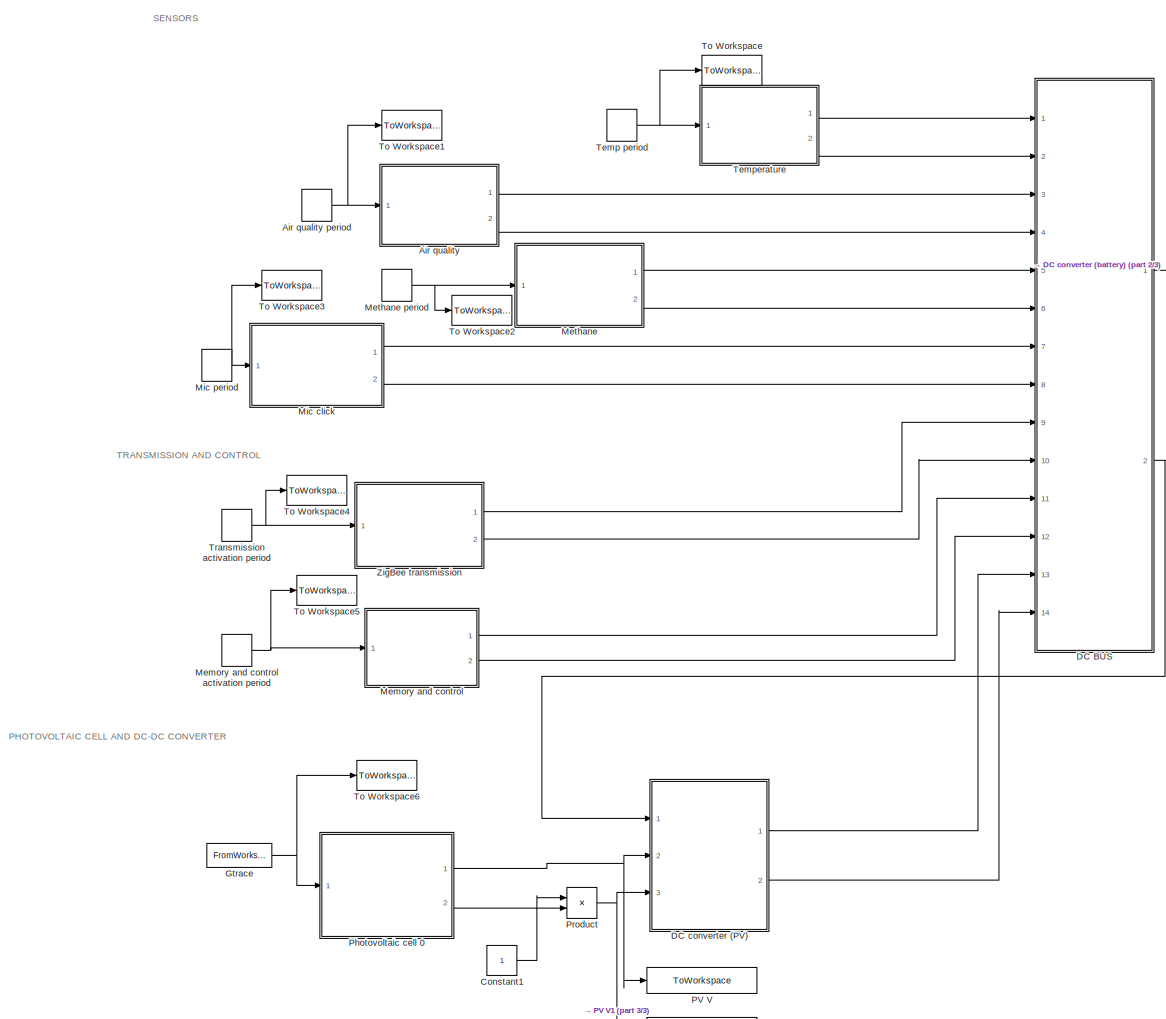
[diagram: root canvas - part 1/3, center side, full height]
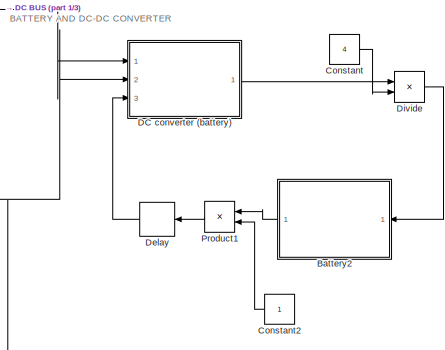
[diagram: root canvas - part 2/3, middle right region]
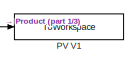
[diagram: root canvas - part 3/3, bottom center region]
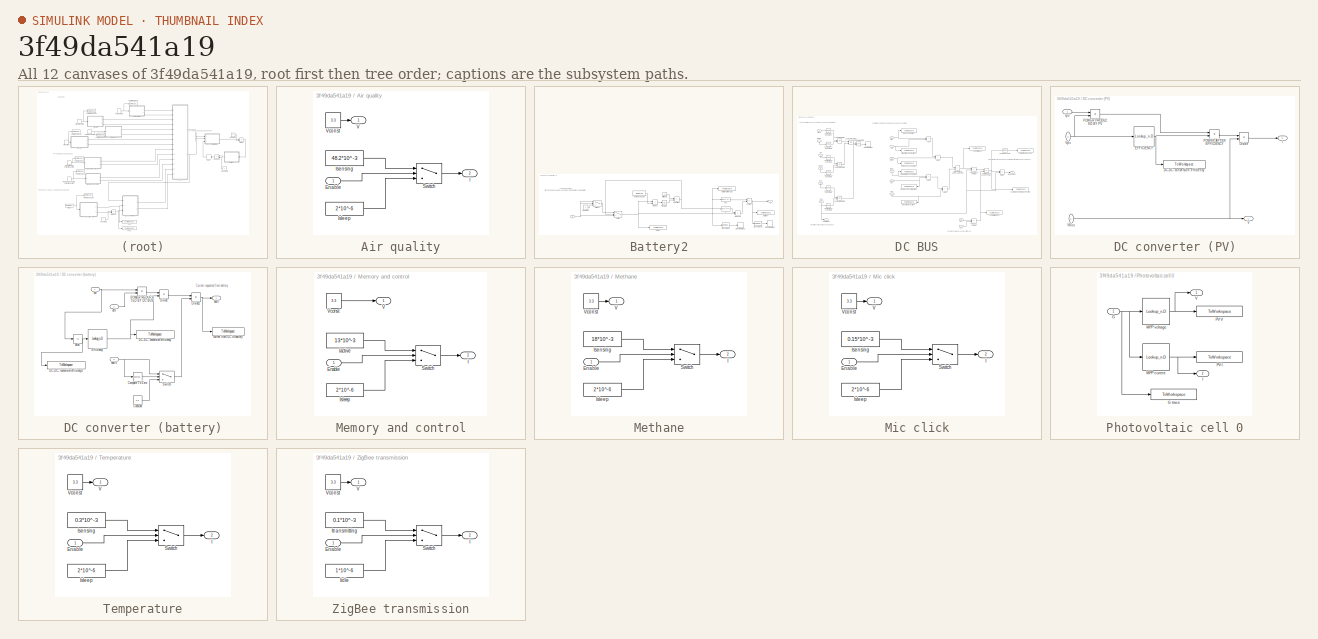
[diagram: thumbnail index - all 12 canvases of the model, root first then tree order]
MODEL slx_3f49da541a19
KIND model
CONFIG AbsTol = auto
CONFIG EnableMultiTasking = off
CONFIG FixedStep = 1
CONFIG MaxStep = auto
CONFIG MinStep = auto
CONFIG RelTol = 1e-3
CONFIG SampleTimeConstraint = Unconstrained
CONFIG SolverName = FixedStepAuto
CONFIG StartTime = 0.0
CONFIG StopTime = sim_length
BLOCK [SubSystem] Air quality
  Ports = [1, 2]
  RequestExecContextInheritance = off
BLOCK [DiscretePulseGenerator] Air quality period
  Period = period
  PhaseDelay = air_delay
  Ports = [0, 1]
  PulseType = Time based
  PulseWidth = air_pulse
BLOCK [Inport] Air quality/Enable
BLOCK [Outport] Air quality/I
  Port = 2
BLOCK [Constant] Air quality/Isensing
  Value = 48.2*10^-3
BLOCK [Constant] Air quality/Isleep
  Value = 2*10^-6
BLOCK [Switch] Air quality/Switch
  Criteria = u2 > Threshold
  InputSameDT = off
  SaturateOnIntegerOverflow = off
BLOCK [Outport] Air quality/V
BLOCK [Constant] Air quality/Vconst
  Value = 3.3
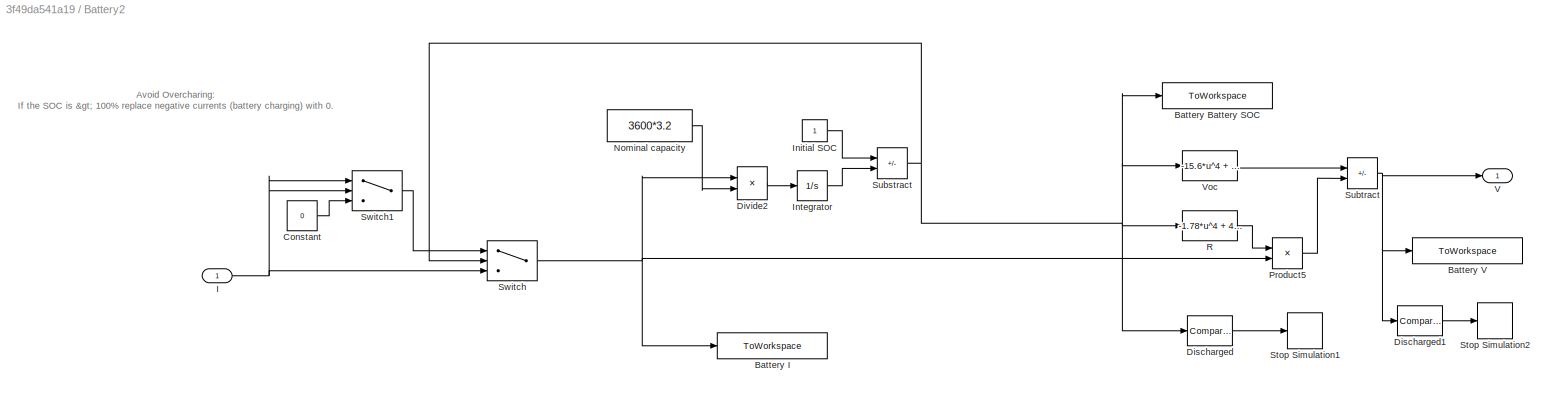
BLOCK [SubSystem] Battery2
  Ports = [1, 1]
  RequestExecContextInheritance = off
BLOCK [ToWorkspace] Battery2/Battery Battery SOC
  FixptAsFi = on
  MaxDataPoints = inf
  Ports = [1]
  SampleTime = -1
  VariableName = battSOC
BLOCK [ToWorkspace] Battery2/Battery I
  FixptAsFi = on
  MaxDataPoints = inf
  Ports = [1]
  SampleTime = -1
  VariableName = battCurrent
BLOCK [ToWorkspace] Battery2/Battery V
  FixptAsFi = on
  MaxDataPoints = inf
  Ports = [1]
  SampleTime = -1
  VariableName = battVoltage
BLOCK [Constant] Battery2/Constant
  Value = 0
BLOCK [Reference] Battery2/Discharged  REF=simulink/Logic and Bit
Operations/Compare
To Constant
  Ports = [1, 1]
  SourceBlock = simulink/Logic and Bit\nOperations/Compare\nTo Constant
  SourceProductBaseCode = SL
  SourceType = Compare To Constant
BLOCK [Reference] Battery2/Discharged1  REF=simulink/Logic and Bit
Operations/Compare
To Constant
  Ports = [1, 1]
  SourceBlock = simulink/Logic and Bit\nOperations/Compare\nTo Constant
  SourceProductBaseCode = SL
  SourceType = Compare To Constant
BLOCK [Product] Battery2/Divide2
  Inputs = */
  Ports = [2, 1]
BLOCK [Inport] Battery2/I
BLOCK [Constant] Battery2/Initial SOC
BLOCK [Integrator] Battery2/Integrator
  Ports = [1, 1]
BLOCK [Constant] Battery2/Nominal capacity
  Value = 3600*3.2
BLOCK [Product] Battery2/Product5
  Ports = [2, 1]
  RndMeth = Zero
BLOCK [Fcn] Battery2/R
  Expr = -1.78*u^4 + 4.222*u^3 + -3.401*u^2 + 1.025*u + 0.06208
BLOCK [Stop] Battery2/Stop Simulation1
BLOCK [Stop] Battery2/Stop Simulation2
BLOCK [Sum] Battery2/Substract
  IconShape = rectangular
  Inputs = +-
  Ports = [2, 1]
BLOCK [Sum] Battery2/Subtract
  IconShape = rectangular
  Inputs = +-
  Ports = [2, 1]
BLOCK [Switch] Battery2/Switch
  InputSameDT = off
  SaturateOnIntegerOverflow = off
  Threshold = 1
BLOCK [Switch] Battery2/Switch1
  InputSameDT = off
  SaturateOnIntegerOverflow = off
BLOCK [Outport] Battery2/V
BLOCK [Fcn] Battery2/Voc
  Expr = -15.6*u^4 + 36.33*u^3 + -29.04*u^2 + 11.22*u + 0.5787
BLOCK [Constant] Constant
  Value = 4
BLOCK [Constant] Constant1
BLOCK [Constant] Constant2
  NameLocation = top
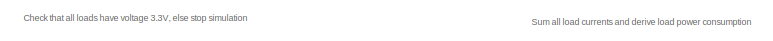
[diagram: DC BUS - part 1/3, top left region]
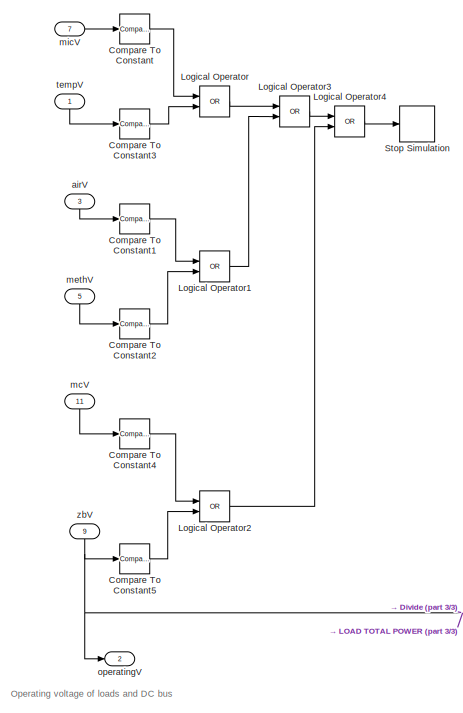
[diagram: DC BUS - part 2/3, left side, full height]
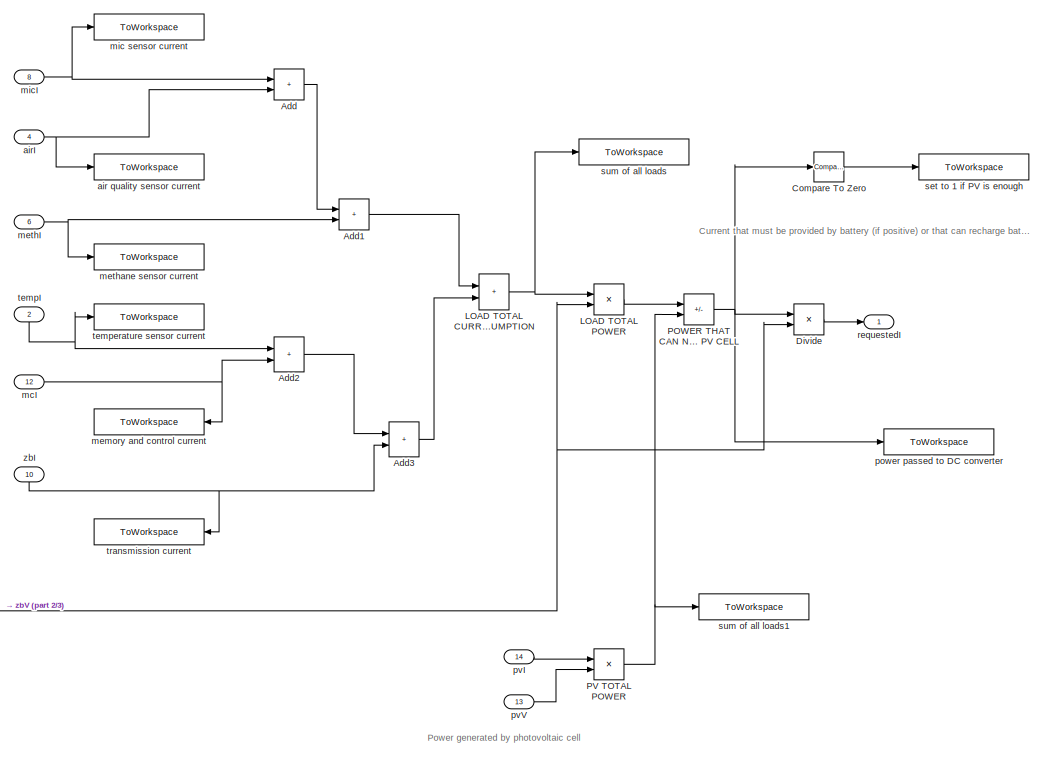
[diagram: DC BUS - part 3/3, right side, full height]
BLOCK [SubSystem] DC BUS
  Ports = [14, 2]
  RequestExecContextInheritance = off
BLOCK [Sum] DC BUS/Add
  IconShape = rectangular
  Ports = [2, 1]
BLOCK [Sum] DC BUS/Add1
  IconShape = rectangular
  Ports = [2, 1]
BLOCK [Sum] DC BUS/Add2
  IconShape = rectangular
  Ports = [2, 1]
BLOCK [Sum] DC BUS/Add3
  IconShape = rectangular
  Ports = [2, 1]
BLOCK [Reference] DC BUS/Compare To Constant  REF=simulink/Logic and Bit
Operations/Compare
To Constant
  Ports = [1, 1]
  SourceBlock = simulink/Logic and Bit\nOperations/Compare\nTo Constant
  SourceProductBaseCode = SL
  SourceType = Compare To Constant
BLOCK [Reference] DC BUS/Compare To Constant1  REF=simulink/Logic and Bit
Operations/Compare
To Constant
  Ports = [1, 1]
  SourceBlock = simulink/Logic and Bit\nOperations/Compare\nTo Constant
  SourceProductBaseCode = SL
  SourceType = Compare To Constant
BLOCK [Reference] DC BUS/Compare To Constant2  REF=simulink/Logic and Bit
Operations/Compare
To Constant
  Ports = [1, 1]
  SourceBlock = simulink/Logic and Bit\nOperations/Compare\nTo Constant
  SourceProductBaseCode = SL
  SourceType = Compare To Constant
BLOCK [Reference] DC BUS/Compare To Constant3  REF=simulink/Logic and Bit
Operations/Compare
To Constant
  Ports = [1, 1]
  SourceBlock = simulink/Logic and Bit\nOperations/Compare\nTo Constant
  SourceProductBaseCode = SL
  SourceType = Compare To Constant
BLOCK [Reference] DC BUS/Compare To Constant4  REF=simulink/Logic and Bit
Operations/Compare
To Constant
  Ports = [1, 1]
  SourceBlock = simulink/Logic and Bit\nOperations/Compare\nTo Constant
  SourceProductBaseCode = SL
  SourceType = Compare To Constant
BLOCK [Reference] DC BUS/Compare To Constant5  REF=simulink/Logic and Bit
Operations/Compare
To Constant
  Ports = [1, 1]
  SourceBlock = simulink/Logic and Bit\nOperations/Compare\nTo Constant
  SourceProductBaseCode = SL
  SourceType = Compare To Constant
BLOCK [Reference] DC BUS/Compare To Zero  REF=simulink/Logic and Bit
Operations/Compare
To Zero
  Ports = [1, 1]
  SourceBlock = simulink/Logic and Bit\nOperations/Compare\nTo Zero
  SourceProductBaseCode = SL
  SourceType = Compare To Zero
BLOCK [Product] DC BUS/Divide
  Inputs = */
  Ports = [2, 1]
BLOCK [Sum] DC BUS/LOAD TOTAL CURRENT CONSUMPTION
  IconShape = rectangular
  Ports = [2, 1]
BLOCK [Product] DC BUS/LOAD TOTAL POWER
  Ports = [2, 1]
BLOCK [Logic] DC BUS/Logical Operator
  AllPortsSameDT = off
  Operator = OR
  OutDataTypeStr = boolean
  Ports = [2, 1]
BLOCK [Logic] DC BUS/Logical Operator1
  AllPortsSameDT = off
  Operator = OR
  OutDataTypeStr = boolean
  Ports = [2, 1]
BLOCK [Logic] DC BUS/Logical Operator2
  AllPortsSameDT = off
  Operator = OR
  OutDataTypeStr = boolean
  Ports = [2, 1]
BLOCK [Logic] DC BUS/Logical Operator3
  AllPortsSameDT = off
  Operator = OR
  OutDataTypeStr = boolean
  Ports = [2, 1]
BLOCK [Logic] DC BUS/Logical Operator4
  AllPortsSameDT = off
  Operator = OR
  OutDataTypeStr = boolean
  Ports = [2, 1]
BLOCK [Sum] DC BUS/POWER THAT CAN NOT BE PROVIDED BY PV CELL
  IconShape = rectangular
  Inputs = +-
  Ports = [2, 1]
BLOCK [Product] DC BUS/PV TOTAL POWER
  Ports = [2, 1]
BLOCK [Stop] DC BUS/Stop Simulation
BLOCK [ToWorkspace] DC BUS/air quality sensor current
  FixptAsFi = on
  MaxDataPoints = inf
  Ports = [1]
  SampleTime = -1
  VariableName = airI
BLOCK [Inport] DC BUS/airI
  Port = 4
BLOCK [Inport] DC BUS/airV
  NameLocation = right
  Port = 3
BLOCK [Inport] DC BUS/mcI
  Port = 12
BLOCK [Inport] DC BUS/mcV
  NameLocation = right
  Port = 11
BLOCK [ToWorkspace] DC BUS/memory and control current
  FixptAsFi = on
  MaxDataPoints = inf
  Ports = [1]
  SampleTime = -1
  VariableName = mcI
BLOCK [Inport] DC BUS/methI
  Port = 6
BLOCK [Inport] DC BUS/methV
  NameLocation = right
  Port = 5
BLOCK [ToWorkspace] DC BUS/methane sensor current
  FixptAsFi = on
  MaxDataPoints = inf
  Ports = [1]
  SampleTime = -1
  VariableName = methI
BLOCK [ToWorkspace] DC BUS/mic sensor current
  FixptAsFi = on
  MaxDataPoints = inf
  Ports = [1]
  SampleTime = -1
  VariableName = micI
BLOCK [Inport] DC BUS/micI
  Port = 8
BLOCK [Inport] DC BUS/micV
  Port = 7
BLOCK [Outport] DC BUS/operatingV
  Port = 2
BLOCK [ToWorkspace] DC BUS/power passed to DC converter
  FixptAsFi = on
  MaxDataPoints = inf
  Ports = [1]
  SampleTime = -1
  VariableName = powerToDC
BLOCK [Inport] DC BUS/pvI
  Port = 14
BLOCK [Inport] DC BUS/pvV
  Port = 13
BLOCK [Outport] DC BUS/requestedI
BLOCK [ToWorkspace] DC BUS/set to 1 if PV is enough
  FixptAsFi = on
  MaxDataPoints = inf
  Ports = [1]
  SampleTime = -1
  VariableName = activePV
BLOCK [ToWorkspace] DC BUS/sum of all loads
  FixptAsFi = on
  MaxDataPoints = inf
  Ports = [1]
  SampleTime = -1
  VariableName = loadCurrent
BLOCK [ToWorkspace] DC BUS/sum of all loads1
  FixptAsFi = on
  MaxDataPoints = inf
  Ports = [1]
  SampleTime = -1
  VariableName = PVPower
BLOCK [Inport] DC BUS/tempI
  NameLocation = right
  Port = 2
BLOCK [Inport] DC BUS/tempV
  NameLocation = right
BLOCK [ToWorkspace] DC BUS/temperature sensor current
  FixptAsFi = on
  MaxDataPoints = inf
  Ports = [1]
  SampleTime = -1
  VariableName = tempI
BLOCK [ToWorkspace] DC BUS/transmission current
  FixptAsFi = on
  MaxDataPoints = inf
  Ports = [1]
  SampleTime = -1
  VariableName = zbI
BLOCK [Inport] DC BUS/zbI
  NameLocation = right
  Port = 10
BLOCK [Inport] DC BUS/zbV
  NameLocation = right
  Port = 9
BLOCK [SubSystem] DC converter (PV)
  Ports = [3, 2]
  RequestExecContextInheritance = off
BLOCK [ToWorkspace] DC converter (PV)/DC-DC- conversion efficiency
  FixptAsFi = on
  MaxDataPoints = inf
  Ports = [1]
  SampleTime = -1
  VariableName = efficiencyPV
BLOCK [Product] DC converter (PV)/Divide
  Inputs = */
  Ports = [2, 1]
BLOCK [Lookup_n-D] DC converter (PV)/EFFICIENCY
  BreakpointsForDimension1 = PV_DCDC(:, 1)
  InputPortMap = u0
  InternalRulePriority = Speed
  NumberOfTableDimensions = 1
  Ports = [1, 1]
  RndMeth = Simplest
  Table = PV_DCDC(:, 2)
BLOCK [Outport] DC converter (PV)/I
  Port = 2
BLOCK [Inport] DC converter (PV)/Ipv
  Port = 3
BLOCK [Product] DC converter (PV)/POWER AFTER EFFICIENCY 
  Ports = [2, 1]
BLOCK [Product] DC converter (PV)/POWER PRODUCED BY PV
  Ports = [2, 1]
BLOCK [Outport] DC converter (PV)/V
BLOCK [Inport] DC converter (PV)/Vbus
  NameLocation = top
BLOCK [Inport] DC converter (PV)/Vpv
  NameLocation = top
  Port = 2
BLOCK [SubSystem] DC converter (battery)
  Ports = [3, 1]
  RequestExecContextInheritance = off
BLOCK [Abs] DC converter (battery)/Abs
  SaturateOnIntegerOverflow = off
BLOCK [Reference] DC converter (battery)/Compare To Zero  REF=simulink/Logic and Bit
Operations/Compare
To Zero
  Ports = [1, 1]
  SourceBlock = simulink/Logic and Bit\nOperations/Compare\nTo Zero
  SourceProductBaseCode = SL
  SourceType = Compare To Zero
BLOCK [Constant] DC converter (battery)/Constant
  Value = 3.6
BLOCK [ToWorkspace] DC converter (battery)/DC-DC- conversion efficiency
  FixptAsFi = on
  MaxDataPoints = inf
  Ports = [1]
  SampleTime = -1
  VariableName = efficiencyBattery
BLOCK [ToWorkspace] DC converter (battery)/DC-DC- conversion efficiency1
  FixptAsFi = on
  MaxDataPoints = inf
  Ports = [1]
  SampleTime = -1
  VariableName = IRequest
BLOCK [Product] DC converter (battery)/Divide
  Inputs = */
  Ports = [2, 1]
BLOCK [Product] DC converter (battery)/Divide1
  Inputs = */
  Ports = [2, 1]
BLOCK [Lookup_n-D] DC converter (battery)/Efficiency
  BreakpointsForDimension1 = BAT_DCDC(:, 1)
  InputPortMap = u0
  InternalRulePriority = Speed
  NumberOfTableDimensions = 1
  Ports = [1, 1]
  RndMeth = Simplest
  Table = BAT_DCDC(:, 2)
BLOCK [Product] DC converter (battery)/POWER REQUESTED BY DC BUS
  Ports = [2, 1]
BLOCK [Switch] DC converter (battery)/Switch
  Criteria = u2 ~= 0
  InputSameDT = off
  SaturateOnIntegerOverflow = off
BLOCK [Outport] DC converter (battery)/battI
BLOCK [Inport] DC converter (battery)/battV
  Port = 3
BLOCK [ToWorkspace] DC converter (battery)/current from DC to battery
  FixptAsFi = on
  MaxDataPoints = inf
  Ports = [1]
  SampleTime = -1
  VariableName = dcToBatt
BLOCK [Inport] DC converter (battery)/dcI
BLOCK [Inport] DC converter (battery)/dcV
  Port = 2
BLOCK [Delay] Delay
  DelayLength = 1
  InitialCondition = 0
  InputPortMap = u0
  Ports = [1, 1]
BLOCK [Product] Divide
  Inputs = */
  Ports = [2, 1]
BLOCK [FromWorkspace] Gtrace
  OutputAfterFinalValue = Setting to zero
  VariableName = Gmonth
BLOCK [SubSystem] Memory and control
  Ports = [1, 2]
  RequestExecContextInheritance = off
BLOCK [DiscretePulseGenerator] Memory and control activation period
  Period = period
  PhaseDelay = mc_delay
  Ports = [0, 1]
  PulseType = Time based
  PulseWidth = mc_pulse
BLOCK [Inport] Memory and control/Enable
BLOCK [Outport] Memory and control/I
  Port = 2
BLOCK [Constant] Memory and control/Iactive
  Value = 13*10^-3
BLOCK [Constant] Memory and control/Isleep
  Value = 2*10^-6
BLOCK [Switch] Memory and control/Switch
  Criteria = u2 > Threshold
  InputSameDT = off
  SaturateOnIntegerOverflow = off
BLOCK [Outport] Memory and control/V
BLOCK [Constant] Memory and control/Vconst
  Value = 3.3
BLOCK [SubSystem] Methane
  Ports = [1, 2]
  RequestExecContextInheritance = off
BLOCK [DiscretePulseGenerator] Methane period
  Period = period
  PhaseDelay = methane_delay
  Ports = [0, 1]
  PulseType = Time based
  PulseWidth = methane_pulse
BLOCK [Inport] Methane/Enable
BLOCK [Outport] Methane/I
  Port = 2
BLOCK [Constant] Methane/Isensing
  Value = 18*10^-3
BLOCK [Constant] Methane/Isleep
  Value = 2*10^-6
BLOCK [Switch] Methane/Switch
  Criteria = u2 > Threshold
  InputSameDT = off
  SaturateOnIntegerOverflow = off
BLOCK [Outport] Methane/V
BLOCK [Constant] Methane/Vconst
  Value = 3.3
BLOCK [SubSystem] Mic click
  Ports = [1, 2]
  RequestExecContextInheritance = off
BLOCK [Inport] Mic click/Enable
BLOCK [Outport] Mic click/I
  Port = 2
BLOCK [Constant] Mic click/Isensing
  Value = 0.15*10^-3
BLOCK [Constant] Mic click/Isleep
  Value = 2*10^-6
BLOCK [Switch] Mic click/Switch
  Criteria = u2 > Threshold
  InputSameDT = off
  SaturateOnIntegerOverflow = off
BLOCK [Outport] Mic click/V
BLOCK [Constant] Mic click/Vconst
  Value = 3.3
BLOCK [DiscretePulseGenerator] Mic period
  Period = period
  PhaseDelay = mic_delay
  Ports = [0, 1]
  PulseType = Time based
  PulseWidth = mic_pulse
BLOCK [ToWorkspace] PV V
  FixptAsFi = on
  MaxDataPoints = inf
  Ports = [1]
  SampleTime = -1
  VariableName = PVvoltage
BLOCK [ToWorkspace] PV V1
  FixptAsFi = on
  MaxDataPoints = inf
  Ports = [1]
  SampleTime = -1
  VariableName = PVcurrent
BLOCK [SubSystem] Photovoltaic cell 0
  Ports = [1, 2]
  RequestExecContextInheritance = off
BLOCK [Inport] Photovoltaic cell 0/G
BLOCK [ToWorkspace] Photovoltaic cell 0/G trace
  FixptAsFi = on
  MaxDataPoints = inf
  Ports = [1]
  SampleTime = -1
  VariableName = Gcurve0
BLOCK [Outport] Photovoltaic cell 0/I
  Port = 2
BLOCK [Lookup_n-D] Photovoltaic cell 0/MPP current
  BreakpointsForDimension1 = G
  InputPortMap = u0
  InternalRulePriority = Speed
  NumberOfTableDimensions = 1
  Ports = [1, 1]
  RndMeth = Simplest
  Table = I
BLOCK [Lookup_n-D] Photovoltaic cell 0/MPP voltage
  BreakpointsForDimension1 = G
  InputPortMap = u0
  InternalRulePriority = Speed
  NumberOfTableDimensions = 1
  Ports = [1, 1]
  RndMeth = Simplest
  Table = V
BLOCK [ToWorkspace] Photovoltaic cell 0/PV I
  FixptAsFi = on
  MaxDataPoints = inf
  Ports = [1]
  SampleTime = -1
  VariableName = PVcurrent0
BLOCK [ToWorkspace] Photovoltaic cell 0/PV V
  FixptAsFi = on
  MaxDataPoints = inf
  Ports = [1]
  SampleTime = -1
  VariableName = PVvoltage0
BLOCK [Outport] Photovoltaic cell 0/V
BLOCK [Product] Product
  Ports = [2, 1]
BLOCK [Product] Product1
  NameLocation = top
  Ports = [2, 1]
BLOCK [DiscretePulseGenerator] Temp period
  Period = period
  PhaseDelay = temp_delay
  Ports = [0, 1]
  PulseType = Time based
  PulseWidth = temp_pulse
BLOCK [SubSystem] Temperature
  Ports = [1, 2]
  RequestExecContextInheritance = off
BLOCK [Inport] Temperature/Enable
BLOCK [Outport] Temperature/I
  Port = 2
BLOCK [Constant] Temperature/Isensing
  Value = 0.3*10^-3
BLOCK [Constant] Temperature/Isleep
  Value = 2*10^-6
BLOCK [Switch] Temperature/Switch
  Criteria = u2 > Threshold
  InputSameDT = off
  SaturateOnIntegerOverflow = off
BLOCK [Outport] Temperature/V
BLOCK [Constant] Temperature/Vconst
  Value = 3.3
BLOCK [ToWorkspace] To Workspace
  FixptAsFi = on
  MaxDataPoints = inf
  Ports = [1]
  SampleTime = -1
  VariableName = TEMP_PERIOD
BLOCK [ToWorkspace] To Workspace1
  FixptAsFi = on
  MaxDataPoints = inf
  Ports = [1]
  SampleTime = -1
  VariableName = AIR_PERIOD
BLOCK [ToWorkspace] To Workspace2
  FixptAsFi = on
  MaxDataPoints = inf
  Ports = [1]
  SampleTime = -1
  VariableName = METHANE_PERIOD
BLOCK [ToWorkspace] To Workspace3
  FixptAsFi = on
  MaxDataPoints = inf
  Ports = [1]
  SampleTime = -1
  VariableName = MIC_PERIOD
BLOCK [ToWorkspace] To Workspace4
  FixptAsFi = on
  MaxDataPoints = inf
  Ports = [1]
  SampleTime = -1
  VariableName = TRANSMIT_PERIOD
BLOCK [ToWorkspace] To Workspace5
  FixptAsFi = on
  MaxDataPoints = inf
  Ports = [1]
  SampleTime = -1
  VariableName = MAC_PERIOD
BLOCK [ToWorkspace] To Workspace6
  FixptAsFi = on
  MaxDataPoints = inf
  Ports = [1]
  SampleTime = -1
  VariableName = LIGHT_WL
BLOCK [DiscretePulseGenerator] Transmission activation period
  Period = period
  PhaseDelay = transmit_delay
  Ports = [0, 1]
  PulseType = Time based
  PulseWidth = transmit_pulse
BLOCK [SubSystem] ZigBee transmission
  Ports = [1, 2]
  RequestExecContextInheritance = off
  UserDataPersistent = on
BLOCK [Inport] ZigBee transmission/Enable
BLOCK [Outport] ZigBee transmission/I
  Port = 2
BLOCK [Constant] ZigBee transmission/Iidle
  Value = 1*10^-6
BLOCK [Constant] ZigBee transmission/Itransmitting
  Value = 0.1*10^-3
BLOCK [Switch] ZigBee transmission/Switch
  Criteria = u2 > Threshold
  InputSameDT = off
  SaturateOnIntegerOverflow = off
BLOCK [Outport] ZigBee transmission/V
BLOCK [Constant] ZigBee transmission/Vconst
  Value = 3.3
ANNOTATION (root): BATTERY AND DC-DC CONVERTER
ANNOTATION (root): PHOTOVOLTAIC CELL AND DC-DC CONVERTER
ANNOTATION (root): SENSORS
ANNOTATION (root): TRANSMISSION AND CONTROL
ANNOTATION Battery2: Avoid Overcharing: If the SOC is > 100% replace negative currents (battery charging) with 0.
ANNOTATION DC BUS: Check that all loads have voltage 3.3V, else stop simulation
ANNOTATION DC BUS: Current that must be provided by battery (if positive) or that can recharge battery (if negative)
ANNOTATION DC BUS: Operating voltage of loads and DC bus
ANNOTATION DC BUS: Power generated by photovoltaic cell
ANNOTATION DC BUS: Sum all load currents and derive load power consumption
ANNOTATION DC converter (battery): Current requested from battery
NET Air quality period:1 -> Air quality:1, To Workspace1:1
LINE Air quality/Enable:1 -> Air quality/Switch:2
LINE Air quality/Isensing:1 -> Air quality/Switch:1
LINE Air quality/Isleep:1 -> Air quality/Switch:3
LINE Air quality/Switch:1 -> Air quality/I:1
LINE Air quality/Vconst:1 -> Air quality/V:1
LINE Air quality:1 -> DC BUS:3
LINE Air quality:2 -> DC BUS:4
LINE Battery2/Constant:1 -> Battery2/Switch1:3
LINE Battery2/Discharged1:1 -> Battery2/Stop Simulation2:1
LINE Battery2/Discharged:1 -> Battery2/Stop Simulation1:1
LINE Battery2/Divide2:1 -> Battery2/Integrator:1
NET Battery2/I:1 -> Battery2/Switch1:1, Battery2/Switch1:2, Battery2/Switch:3
LINE Battery2/Initial SOC:1 -> Battery2/Substract:1
LINE Battery2/Integrator:1 -> Battery2/Substract:2
LINE Battery2/Nominal capacity:1 -> Battery2/Divide2:2
LINE Battery2/Product5:1 -> Battery2/Subtract:2
LINE Battery2/R:1 -> Battery2/Product5:1
NET Battery2/Substract:1 -> Battery2/Battery Battery SOC:1, Battery2/Discharged:1, Battery2/R:1, Battery2/Switch:2, Battery2/Voc:1
NET Battery2/Subtract:1 -> Battery2/Battery V:1, Battery2/Discharged1:1, Battery2/V:1
LINE Battery2/Switch1:1 -> Battery2/Switch:1
NET Battery2/Switch:1 -> Battery2/Battery I:1, Battery2/Divide2:1, Battery2/Product5:2
LINE Battery2/Voc:1 -> Battery2/Subtract:1
LINE Battery2:1 -> Product1:1
LINE Constant1:1 -> Product:1
LINE Constant2:1 -> Product1:2
LINE Constant:1 -> Divide:2
LINE DC BUS/Add1:1 -> DC BUS/LOAD TOTAL CURRENT CONSUMPTION:1
LINE DC BUS/Add2:1 -> DC BUS/Add3:1
LINE DC BUS/Add3:1 -> DC BUS/LOAD TOTAL CURRENT CONSUMPTION:2
LINE DC BUS/Add:1 -> DC BUS/Add1:1
LINE DC BUS/Compare To Constant1:1 -> DC BUS/Logical Operator1:1
LINE DC BUS/Compare To Constant2:1 -> DC BUS/Logical Operator1:2
LINE DC BUS/Compare To Constant3:1 -> DC BUS/Logical Operator:2
LINE DC BUS/Compare To Constant4:1 -> DC BUS/Logical Operator2:1
LINE DC BUS/Compare To Constant5:1 -> DC BUS/Logical Operator2:2
LINE DC BUS/Compare To Constant:1 -> DC BUS/Logical Operator:1
LINE DC BUS/Compare To Zero:1 -> DC BUS/set to 1 if PV is enough:1
LINE DC BUS/Divide:1 -> DC BUS/requestedI:1
NET DC BUS/LOAD TOTAL CURRENT CONSUMPTION:1 -> DC BUS/LOAD TOTAL POWER:1, DC BUS/sum of all loads:1
LINE DC BUS/LOAD TOTAL POWER:1 -> DC BUS/POWER THAT CAN NOT BE PROVIDED BY PV CELL:1
LINE DC BUS/Logical Operator1:1 -> DC BUS/Logical Operator3:2
LINE DC BUS/Logical Operator2:1 -> DC BUS/Logical Operator4:2
LINE DC BUS/Logical Operator3:1 -> DC BUS/Logical Operator4:1
LINE DC BUS/Logical Operator4:1 -> DC BUS/Stop Simulation:1
LINE DC BUS/Logical Operator:1 -> DC BUS/Logical Operator3:1
NET DC BUS/POWER THAT CAN NOT BE PROVIDED BY PV CELL:1 -> DC BUS/Compare To Zero:1, DC BUS/Divide:1, DC BUS/power passed to DC converter:1
NET DC BUS/PV TOTAL POWER:1 -> DC BUS/POWER THAT CAN NOT BE PROVIDED BY PV CELL:2, DC BUS/sum of all loads1:1
NET DC BUS/airI:1 -> DC BUS/Add:2, DC BUS/air quality sensor current:1
LINE DC BUS/airV:1 -> DC BUS/Compare To Constant1:1
NET DC BUS/mcI:1 -> DC BUS/Add2:2, DC BUS/memory and control current:1
LINE DC BUS/mcV:1 -> DC BUS/Compare To Constant4:1
NET DC BUS/methI:1 -> DC BUS/Add1:2, DC BUS/methane sensor current:1
LINE DC BUS/methV:1 -> DC BUS/Compare To Constant2:1
NET DC BUS/micI:1 -> DC BUS/Add:1, DC BUS/mic sensor current:1
LINE DC BUS/micV:1 -> DC BUS/Compare To Constant:1
LINE DC BUS/pvI:1 -> DC BUS/PV TOTAL POWER:1
LINE DC BUS/pvV:1 -> DC BUS/PV TOTAL POWER:2
NET DC BUS/tempI:1 -> DC BUS/Add2:1, DC BUS/temperature sensor current:1
LINE DC BUS/tempV:1 -> DC BUS/Compare To Constant3:1
NET DC BUS/zbI:1 -> DC BUS/Add3:2, DC BUS/transmission current:1
NET DC BUS/zbV:1 -> DC BUS/Compare To Constant5:1, DC BUS/Divide:2, DC BUS/LOAD TOTAL POWER:2, DC BUS/operatingV:1
LINE DC BUS:1 -> DC converter (battery):1
NET DC BUS:2 -> DC converter (PV):1, DC converter (battery):2
LINE DC converter (PV)/Divide:1 -> DC converter (PV)/I:1
NET DC converter (PV)/EFFICIENCY:1 -> DC converter (PV)/DC-DC- conversion efficiency:1, DC converter (PV)/POWER AFTER EFFICIENCY :2
LINE DC converter (PV)/Ipv:1 -> DC converter (PV)/POWER PRODUCED BY PV:1
LINE DC converter (PV)/POWER AFTER EFFICIENCY :1 -> DC converter (PV)/Divide:1
LINE DC converter (PV)/POWER PRODUCED BY PV:1 -> DC converter (PV)/POWER AFTER EFFICIENCY :1
NET DC converter (PV)/Vbus:1 -> DC converter (PV)/Divide:2, DC converter (PV)/V:1
NET DC converter (PV)/Vpv:1 -> DC converter (PV)/EFFICIENCY:1, DC converter (PV)/POWER PRODUCED BY PV:2
LINE DC converter (PV):1 -> DC BUS:13
LINE DC converter (PV):2 -> DC BUS:14
NET DC converter (battery)/Abs:1 -> DC converter (battery)/DC-DC- conversion efficiency1:1, DC converter (battery)/Efficiency:1
LINE DC converter (battery)/Compare To Zero:1 -> DC converter (battery)/Switch:2
LINE DC converter (battery)/Constant:1 -> DC converter (battery)/Switch:3
NET DC converter (battery)/Divide1:1 -> DC converter (battery)/battI:1, DC converter (battery)/current from DC to battery:1
LINE DC converter (battery)/Divide:1 -> DC converter (battery)/Divide1:1
NET DC converter (battery)/Efficiency:1 -> DC converter (battery)/DC-DC- conversion efficiency:1, DC converter (battery)/Divide:2
LINE DC converter (battery)/POWER REQUESTED BY DC BUS:1 -> DC converter (battery)/Divide:1
LINE DC converter (battery)/Switch:1 -> DC converter (battery)/Divide1:2
NET DC converter (battery)/battV:1 -> DC converter (battery)/Compare To Zero:1, DC converter (battery)/Switch:1
NET DC converter (battery)/dcI:1 -> DC converter (battery)/Abs:1, DC converter (battery)/POWER REQUESTED BY DC BUS:1
LINE DC converter (battery)/dcV:1 -> DC converter (battery)/POWER REQUESTED BY DC BUS:2
LINE DC converter (battery):1 -> Divide:1
LINE Delay:1 -> DC converter (battery):3
LINE Divide:1 -> Battery2:1
NET Gtrace:1 -> Photovoltaic cell 0:1, To Workspace6:1
NET Memory and control activation period:1 -> Memory and control:1, To Workspace5:1
LINE Memory and control/Enable:1 -> Memory and control/Switch:2
LINE Memory and control/Iactive:1 -> Memory and control/Switch:1
LINE Memory and control/Isleep:1 -> Memory and control/Switch:3
LINE Memory and control/Switch:1 -> Memory and control/I:1
LINE Memory and control/Vconst:1 -> Memory and control/V:1
LINE Memory and control:1 -> DC BUS:11
LINE Memory and control:2 -> DC BUS:12
NET Methane period:1 -> Methane:1, To Workspace2:1
LINE Methane/Enable:1 -> Methane/Switch:2
LINE Methane/Isensing:1 -> Methane/Switch:1
LINE Methane/Isleep:1 -> Methane/Switch:3
LINE Methane/Switch:1 -> Methane/I:1
LINE Methane/Vconst:1 -> Methane/V:1
LINE Methane:1 -> DC BUS:5
LINE Methane:2 -> DC BUS:6
LINE Mic click/Enable:1 -> Mic click/Switch:2
LINE Mic click/Isensing:1 -> Mic click/Switch:1
LINE Mic click/Isleep:1 -> Mic click/Switch:3
LINE Mic click/Switch:1 -> Mic click/I:1
LINE Mic click/Vconst:1 -> Mic click/V:1
LINE Mic click:1 -> DC BUS:7
LINE Mic click:2 -> DC BUS:8
NET Mic period:1 -> Mic click:1, To Workspace3:1
NET Photovoltaic cell 0/G:1 -> Photovoltaic cell 0/G trace:1, Photovoltaic cell 0/MPP current:1, Photovoltaic cell 0/MPP voltage:1
NET Photovoltaic cell 0/MPP current:1 -> Photovoltaic cell 0/I:1, Photovoltaic cell 0/PV I:1
NET Photovoltaic cell 0/MPP voltage:1 -> Photovoltaic cell 0/PV V:1, Photovoltaic cell 0/V:1
NET Photovoltaic cell 0:1 -> DC converter (PV):2, PV V:1
LINE Photovoltaic cell 0:2 -> Product:2
LINE Product1:1 -> Delay:1
NET Product:1 -> DC converter (PV):3, PV V1:1
NET Temp period:1 -> Temperature:1, To Workspace:1
LINE Temperature/Enable:1 -> Temperature/Switch:2
LINE Temperature/Isensing:1 -> Temperature/Switch:1
LINE Temperature/Isleep:1 -> Temperature/Switch:3
LINE Temperature/Switch:1 -> Temperature/I:1
LINE Temperature/Vconst:1 -> Temperature/V:1
LINE Temperature:1 -> DC BUS:1
LINE Temperature:2 -> DC BUS:2
NET Transmission activation period:1 -> To Workspace4:1, ZigBee transmission:1
LINE ZigBee transmission/Enable:1 -> ZigBee transmission/Switch:2
LINE ZigBee transmission/Iidle:1 -> ZigBee transmission/Switch:3
LINE ZigBee transmission/Itransmitting:1 -> ZigBee transmission/Switch:1
LINE ZigBee transmission/Switch:1 -> ZigBee transmission/I:1
LINE ZigBee transmission/Vconst:1 -> ZigBee transmission/V:1
LINE ZigBee transmission:1 -> DC BUS:9
LINE ZigBee transmission:2 -> DC BUS:10
note: NET lines group one-source signal fan-out (src -> all destinations, sorted); 1:1 wires keep LINE
